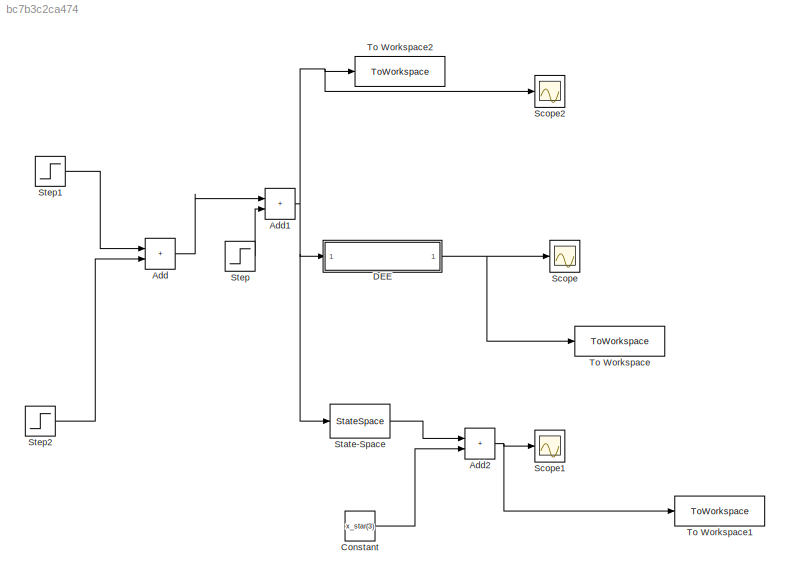
MODEL slx_bc7b3c2ca474
KIND model
CONFIG AbsTol = auto
CONFIG EnableMultiTasking = off
CONFIG FixedStep = auto
CONFIG MaxStep = auto
CONFIG MinStep = auto
CONFIG RelTol = 1e-3
CONFIG SampleTimeConstraint = Unconstrained
CONFIG SolverName = VariableStepAuto
CONFIG StartTime = 0.0
CONFIG StopTime = 150
WORKSPACE source: MATLAB code (in-file)
WORKSPACE Kab = 12
WORKSPACE Kca = 16
WORKSPACE Fb = 2
WORKSPACE Kbc = 4
WORKSPACE Kcb = 10
WORKSPACE Kia = 8
WORKSPACE Fa = 6
WORKSPACE code: x_star=[0.4;0.64;0.5];
BLOCK [Sum] Add
  IconShape = rectangular
  Ports = [2, 1]
BLOCK [Sum] Add1
  IconShape = rectangular
  Ports = [2, 1]
BLOCK [Sum] Add2
  IconShape = rectangular
  Ports = [2, 1]
BLOCK [Constant] Constant
  Value = x_star(3)
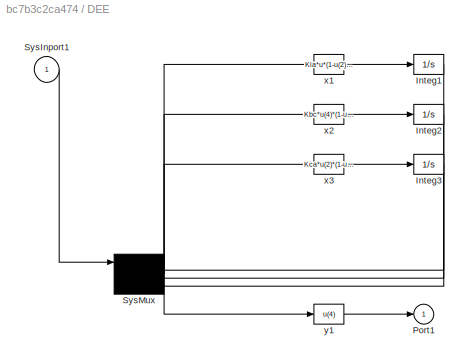
BLOCK [SubSystem] DEE
  OpenFcn = diffeqed
  Ports = [1, 1]
  RequestExecContextInheritance = off
BLOCK [Integrator] DEE/Integ1
  InitialCondition = x_star(1)
  Ports = [1, 1]
BLOCK [Integrator] DEE/Integ2
  InitialCondition = x_star(2)
  Ports = [1, 1]
BLOCK [Integrator] DEE/Integ3
  InitialCondition = x_star(3)
  Ports = [1, 1]
BLOCK [Outport] DEE/Port1
BLOCK [Inport] DEE/SysInport1
BLOCK [Mux] DEE/SysMux
  Ports = [4, 1]
BLOCK [Fcn] DEE/x1
  Expr = Kia*u*(1-u(2))/(1.0000001-u(2))-Fa*u(2);
BLOCK [Fcn] DEE/x2
  Expr = Kbc*u(4)*(1-u(3))/(1.00000001-u(3))-Fb*u(3)/(0.000000001+u(3));
BLOCK [Fcn] DEE/x3
  Expr = Kca*u(2)*(1-u(4))-Kcb*u(4)*u(3);
BLOCK [Fcn] DEE/y1
  Expr = u(4)
BLOCK [Scope] Scope
  Floating = off
  NumInputPorts = 1
  Ports = [1]
  ScopeSpecificationString = Simulink.scopes.TimeScopeBlockCfg('CurrentConfiguration', extmgr.ConfigurationSet(extmgr.Configuration('Core','General UI',true),extmgr.Configuration('Core','Source UI',true),extmgr.Configuration('Sources','WiredSimulink',true),extmgr.Configuration('Visuals','Time Domain',true,'SerializedDisplays',{struct('MinYLimReal','0.48852','MaxYLimReal','0.5968','YLabelReal','','MinYLimMag','0.48852','MaxYLi...<+1372ch>
BLOCK [Scope] Scope1
  Floating = off
  NumInputPorts = 1
  Ports = [1]
  ScopeSpecificationString = Simulink.scopes.TimeScopeBlockCfg('CurrentConfiguration', extmgr.ConfigurationSet(extmgr.Configuration('Core','General UI',true),extmgr.Configuration('Core','Source UI',true),extmgr.Configuration('Sources','WiredSimulink',true,'DataLoggingVariableName','ScopeData1'),extmgr.Configuration('Visuals','Time Domain',true,'SerializedDisplays',{struct('MinYLimReal','0.46433','MaxYLimReal','0.82106','YLabe...<+1390ch>
BLOCK [Scope] Scope2
  Floating = off
  NumInputPorts = 1
  Ports = [1]
  ScopeSpecificationString = Simulink.scopes.TimeScopeBlockCfg('CurrentConfiguration', extmgr.ConfigurationSet(extmgr.Configuration('Core','General UI',true),extmgr.Configuration('Core','Source UI',true),extmgr.Configuration('Sources','WiredSimulink',true,'DataLoggingVariableName','ScopeData1'),extmgr.Configuration('Visuals','Time Domain',true,'SerializedDisplays',{struct('MinYLimReal','0.45625','MaxYLimReal','0.89375','YLabe...<+1390ch>
BLOCK [StateSpace] State-Space
  A = [-6 0 0;0 0 4;8 -5 -12]
  B = [8;0;0]
  C = [0 0 1]
  D = 0
  InitialCondition = 0
  Ports = [1, 1]
BLOCK [Step] Step
  After = 0.15
  SampleTime = 0
  Time = 100
BLOCK [Step] Step1
  After = 0.5
  Before = 0.3
  SampleTime = 0
  Time = 0
BLOCK [Step] Step2
  After = 0.2
  SampleTime = 0
  Time = 50
BLOCK [ToWorkspace] To Workspace
  FixptAsFi = on
  MaxDataPoints = inf
  Ports = [1]
  SampleTime = -1
  VariableName = yk_non_lin
BLOCK [ToWorkspace] To Workspace1
  FixptAsFi = on
  MaxDataPoints = inf
  Ports = [1]
  SampleTime = -1
  VariableName = yk_lin
BLOCK [ToWorkspace] To Workspace2
  FixptAsFi = on
  MaxDataPoints = inf
  Ports = [1]
  SampleTime = -1
  VariableName = Input
NET Add1:1 -> DEE:1, Scope2:1, State-Space:1, To Workspace2:1
NET Add2:1 -> Scope1:1, To Workspace1:1
LINE Add:1 -> Add1:1
LINE Constant:1 -> Add2:2
LINE DEE/Integ1:1 -> DEE/SysMux:2
LINE DEE/Integ2:1 -> DEE/SysMux:3
LINE DEE/Integ3:1 -> DEE/SysMux:4
LINE DEE/SysInport1:1 -> DEE/SysMux:1
NET DEE/SysMux:1 -> DEE/x1:1, DEE/x2:1, DEE/x3:1, DEE/y1:1
LINE DEE/x1:1 -> DEE/Integ1:1
LINE DEE/x2:1 -> DEE/Integ2:1
LINE DEE/x3:1 -> DEE/Integ3:1
LINE DEE/y1:1 -> DEE/Port1:1
NET DEE:1 -> Scope:1, To Workspace:1
LINE State-Space:1 -> Add2:1
LINE Step1:1 -> Add:1
LINE Step2:1 -> Add:2
LINE Step:1 -> Add1:2
note: NET lines group one-source signal fan-out (src -> all destinations, sorted); 1:1 wires keep LINE
